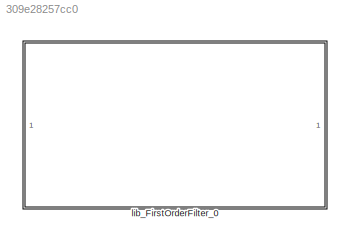
MODEL slx_309e28257cc0
KIND library
CONFIG AbsTol = auto
CONFIG EnableMultiTasking = off
CONFIG FixedStep = auto
CONFIG MaxStep = auto
CONFIG MinStep = auto
CONFIG RelTol = 1e-3
CONFIG SampleTimeConstraint = Unconstrained
CONFIG SolverName = VariableStepAuto
CONFIG StartTime = 0.0
CONFIG StopTime = 10.0
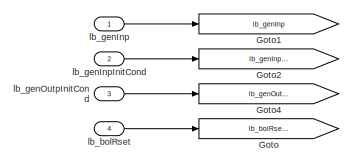
[diagram: lib_FirstOrderFilter_0 - part 1/4, top left region]
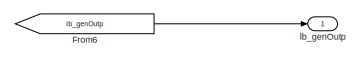
[diagram: lib_FirstOrderFilter_0 - part 2/4, top right region]
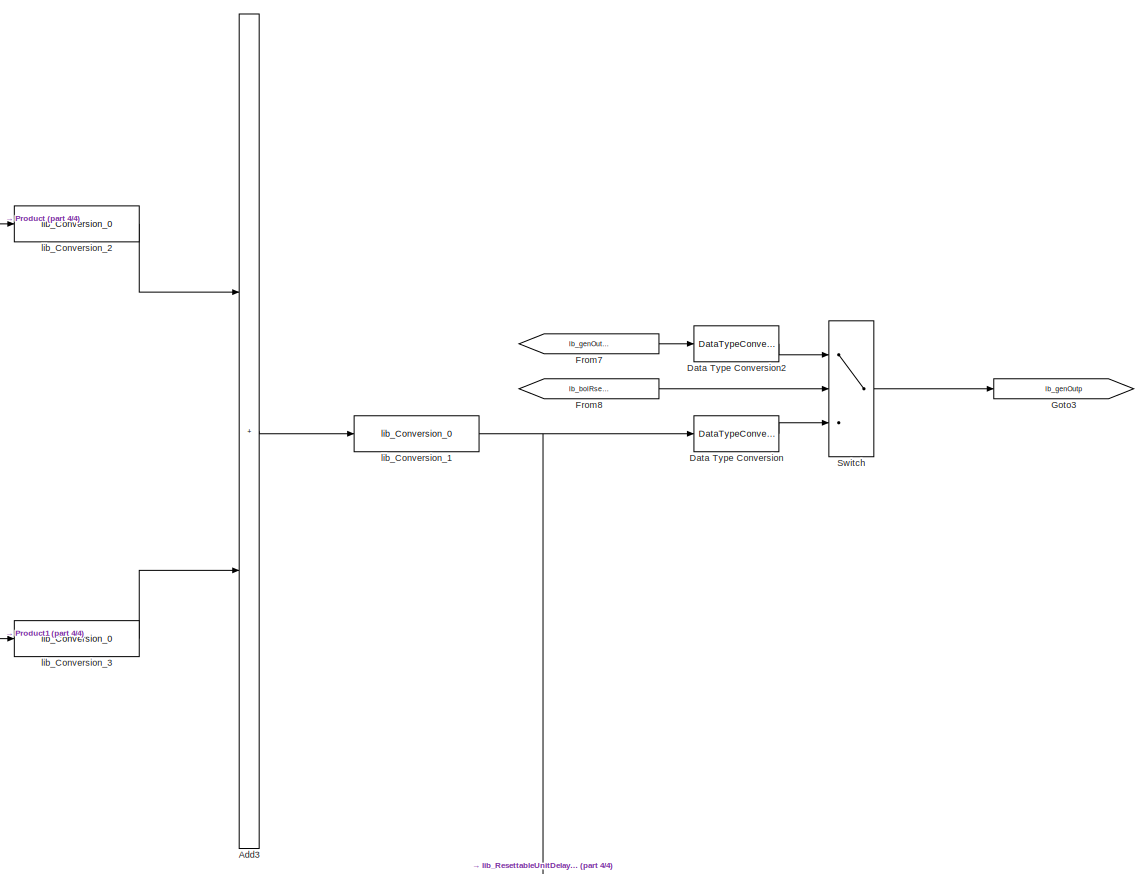
[diagram: lib_FirstOrderFilter_0 - part 3/4, middle right region]
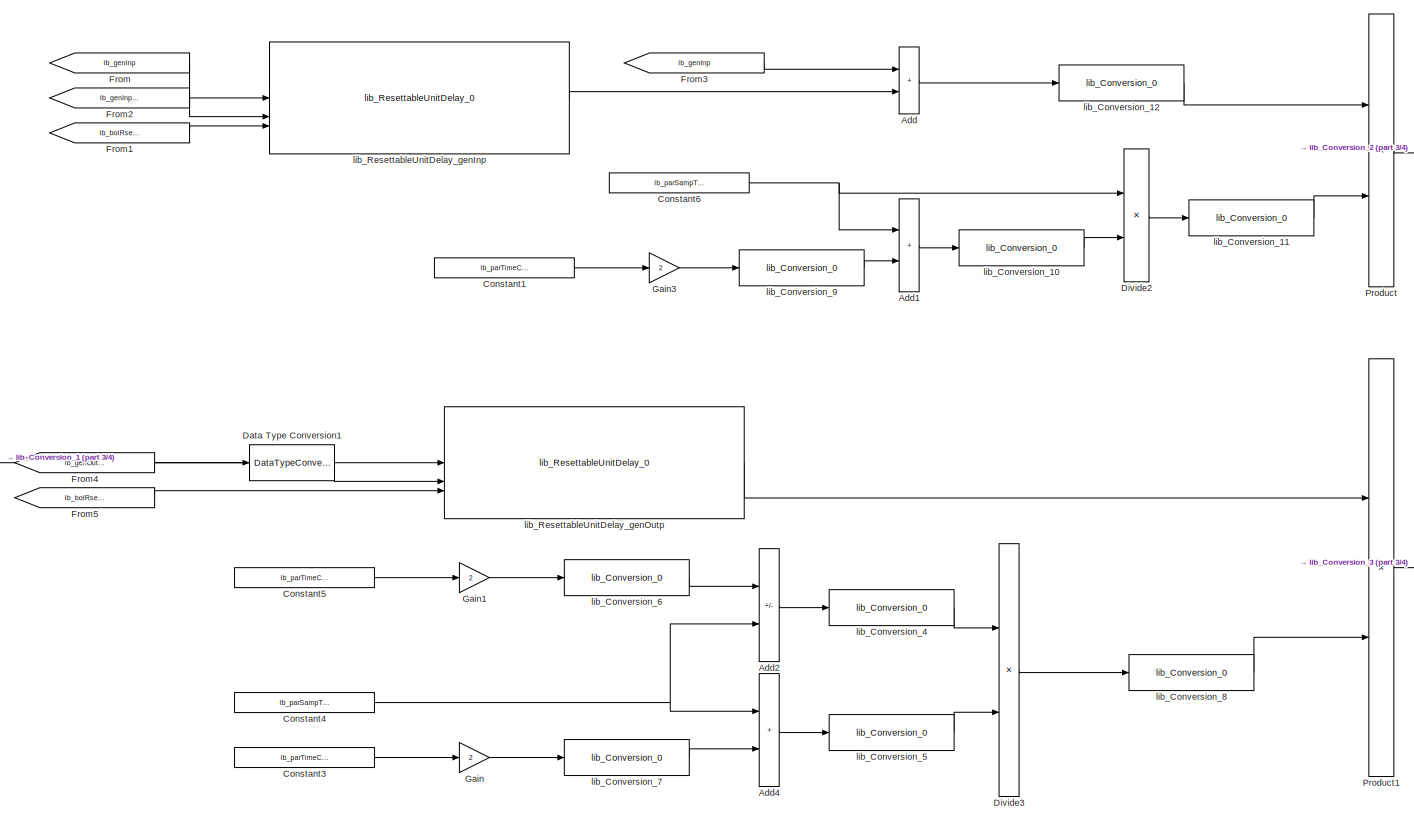
[diagram: lib_FirstOrderFilter_0 - part 4/4, central region]
BLOCK [SubSystem] lib_FirstOrderFilter_0
BLOCK [Sum] lib_FirstOrderFilter_0/Add
  IconShape = rectangular
  OutDataTypeStr = Inherit: Inherit via back propagation
BLOCK [Sum] lib_FirstOrderFilter_0/Add1
  IconShape = rectangular
  OutDataTypeStr = Inherit: Inherit via back propagation
BLOCK [Sum] lib_FirstOrderFilter_0/Add2
  IconShape = rectangular
  Inputs = +-
  OutDataTypeStr = Inherit: Inherit via back propagation
BLOCK [Sum] lib_FirstOrderFilter_0/Add3
  IconShape = rectangular
  OutDataTypeStr = Inherit: Inherit via back propagation
BLOCK [Sum] lib_FirstOrderFilter_0/Add4
  IconShape = rectangular
  OutDataTypeStr = Inherit: Inherit via back propagation
BLOCK [Constant] lib_FirstOrderFilter_0/Constant1
  Value = lb_parTimeCnst
BLOCK [Constant] lib_FirstOrderFilter_0/Constant3
  Value = lb_parTimeCnst
BLOCK [Constant] lib_FirstOrderFilter_0/Constant4
  Value = lb_parSampTime
BLOCK [Constant] lib_FirstOrderFilter_0/Constant5
  Value = lb_parTimeCnst
BLOCK [Constant] lib_FirstOrderFilter_0/Constant6
  Value = lb_parSampTime
BLOCK [DataTypeConversion] lib_FirstOrderFilter_0/Data Type Conversion
  OutDataTypeStr = lb_parOutpDataType
  RndMeth = Floor
  SaturateOnIntegerOverflow = off
BLOCK [DataTypeConversion] lib_FirstOrderFilter_0/Data Type Conversion1
  OutDataTypeStr = lb_parAccmDataType
  RndMeth = Floor
  SaturateOnIntegerOverflow = off
BLOCK [DataTypeConversion] lib_FirstOrderFilter_0/Data Type Conversion2
  OutDataTypeStr = lb_parOutpDataType
  RndMeth = Floor
  SaturateOnIntegerOverflow = off
BLOCK [Product] lib_FirstOrderFilter_0/Divide2
  Inputs = */
  OutDataTypeStr = Inherit: Inherit via back propagation
BLOCK [Product] lib_FirstOrderFilter_0/Divide3
  Inputs = */
  OutDataTypeStr = Inherit: Inherit via back propagation
BLOCK [From] lib_FirstOrderFilter_0/From
  GotoTag = lb_genInp
BLOCK [From] lib_FirstOrderFilter_0/From1
  GotoTag = lb_bolRsetCond
BLOCK [From] lib_FirstOrderFilter_0/From2
  GotoTag = lb_genInpInitCond
BLOCK [From] lib_FirstOrderFilter_0/From3
  GotoTag = lb_genInp
BLOCK [From] lib_FirstOrderFilter_0/From4
  GotoTag = lb_genOutpInitCond
BLOCK [From] lib_FirstOrderFilter_0/From5
  GotoTag = lb_bolRsetCond
BLOCK [From] lib_FirstOrderFilter_0/From6
  GotoTag = lb_genOutp
BLOCK [From] lib_FirstOrderFilter_0/From7
  GotoTag = lb_genOutpInitCond
BLOCK [From] lib_FirstOrderFilter_0/From8
  GotoTag = lb_bolRsetCond
BLOCK [Gain] lib_FirstOrderFilter_0/Gain
  Gain = 2
  OutDataTypeStr = Inherit: Inherit via back propagation
BLOCK [Gain] lib_FirstOrderFilter_0/Gain1
  Gain = 2
  OutDataTypeStr = Inherit: Inherit via back propagation
BLOCK [Gain] lib_FirstOrderFilter_0/Gain3
  Gain = 2
  OutDataTypeStr = Inherit: Inherit via back propagation
BLOCK [Goto] lib_FirstOrderFilter_0/Goto
  GotoTag = lb_bolRsetCond
BLOCK [Goto] lib_FirstOrderFilter_0/Goto1
  GotoTag = lb_genInp
BLOCK [Goto] lib_FirstOrderFilter_0/Goto2
  GotoTag = lb_genInpInitCond
BLOCK [Goto] lib_FirstOrderFilter_0/Goto3
  GotoTag = lb_genOutp
BLOCK [Goto] lib_FirstOrderFilter_0/Goto4
  GotoTag = lb_genOutpInitCond
BLOCK [Product] lib_FirstOrderFilter_0/Product
  OutDataTypeStr = Inherit: Inherit via back propagation
BLOCK [Product] lib_FirstOrderFilter_0/Product1
  OutDataTypeStr = Inherit: Inherit via back propagation
BLOCK [Switch] lib_FirstOrderFilter_0/Switch
  Criteria = u2 ~= 0
  InputSameDT = off
  SaturateOnIntegerOverflow = off
BLOCK [Inport] lib_FirstOrderFilter_0/lb_bolRset
  Port = 4
BLOCK [Inport] lib_FirstOrderFilter_0/lb_genInp
BLOCK [Inport] lib_FirstOrderFilter_0/lb_genInpInitCond
  Port = 2
BLOCK [Outport] lib_FirstOrderFilter_0/lb_genOutp
BLOCK [Inport] lib_FirstOrderFilter_0/lb_genOutpInitCond
  Port = 3
BLOCK [Reference] lib_FirstOrderFilter_0/lib_Conversion_1  REF=lib_conversion/lib_Conversion_0  (lib defined in slx_7f5c0202220d)
  SourceBlock = lib_conversion/lib_Conversion_0
BLOCK [Reference] lib_FirstOrderFilter_0/lib_Conversion_10  REF=lib_conversion/lib_Conversion_0  (lib defined in slx_7f5c0202220d)
  SourceBlock = lib_conversion/lib_Conversion_0
BLOCK [Reference] lib_FirstOrderFilter_0/lib_Conversion_11  REF=lib_conversion/lib_Conversion_0  (lib defined in slx_7f5c0202220d)
  SourceBlock = lib_conversion/lib_Conversion_0
BLOCK [Reference] lib_FirstOrderFilter_0/lib_Conversion_12  REF=lib_conversion/lib_Conversion_0  (lib defined in slx_7f5c0202220d)
  SourceBlock = lib_conversion/lib_Conversion_0
BLOCK [Reference] lib_FirstOrderFilter_0/lib_Conversion_2  REF=lib_conversion/lib_Conversion_0  (lib defined in slx_7f5c0202220d)
  SourceBlock = lib_conversion/lib_Conversion_0
BLOCK [Reference] lib_FirstOrderFilter_0/lib_Conversion_3  REF=lib_conversion/lib_Conversion_0  (lib defined in slx_7f5c0202220d)
  SourceBlock = lib_conversion/lib_Conversion_0
BLOCK [Reference] lib_FirstOrderFilter_0/lib_Conversion_4  REF=lib_conversion/lib_Conversion_0  (lib defined in slx_7f5c0202220d)
  SourceBlock = lib_conversion/lib_Conversion_0
BLOCK [Reference] lib_FirstOrderFilter_0/lib_Conversion_5  REF=lib_conversion/lib_Conversion_0  (lib defined in slx_7f5c0202220d)
  SourceBlock = lib_conversion/lib_Conversion_0
BLOCK [Reference] lib_FirstOrderFilter_0/lib_Conversion_6  REF=lib_conversion/lib_Conversion_0  (lib defined in slx_7f5c0202220d)
  SourceBlock = lib_conversion/lib_Conversion_0
BLOCK [Reference] lib_FirstOrderFilter_0/lib_Conversion_7  REF=lib_conversion/lib_Conversion_0  (lib defined in slx_7f5c0202220d)
  SourceBlock = lib_conversion/lib_Conversion_0
BLOCK [Reference] lib_FirstOrderFilter_0/lib_Conversion_8  REF=lib_conversion/lib_Conversion_0  (lib defined in slx_7f5c0202220d)
  SourceBlock = lib_conversion/lib_Conversion_0
BLOCK [Reference] lib_FirstOrderFilter_0/lib_Conversion_9  REF=lib_conversion/lib_Conversion_0  (lib defined in slx_7f5c0202220d)
  SourceBlock = lib_conversion/lib_Conversion_0
BLOCK [Reference] lib_FirstOrderFilter_0/lib_ResettableUnitDelay_genInp  REF=lib_resettable_unit_delay/lib_ResettableUnitDelay_0  (lib defined in slx_07610dccfeb3)
  LibrarySourceBlock = vhit_control_library/lib_ResettableUnitDelay_0
  SourceBlock = lib_resettable_unit_delay/lib_ResettableUnitDelay_0
BLOCK [Reference] lib_FirstOrderFilter_0/lib_ResettableUnitDelay_genOutp  REF=lib_resettable_unit_delay/lib_ResettableUnitDelay_0  (lib defined in slx_07610dccfeb3)
  LibrarySourceBlock = vhit_control_library/lib_ResettableUnitDelay_0
  SourceBlock = lib_resettable_unit_delay/lib_ResettableUnitDelay_0
LINE lib_FirstOrderFilter_0/Add1:1 -> lib_FirstOrderFilter_0/lib_Conversion_10:1
LINE lib_FirstOrderFilter_0/Add2:1 -> lib_FirstOrderFilter_0/lib_Conversion_4:1
LINE lib_FirstOrderFilter_0/Add3:1 -> lib_FirstOrderFilter_0/lib_Conversion_1:1
LINE lib_FirstOrderFilter_0/Add4:1 -> lib_FirstOrderFilter_0/lib_Conversion_5:1
LINE lib_FirstOrderFilter_0/Add:1 -> lib_FirstOrderFilter_0/lib_Conversion_12:1
LINE lib_FirstOrderFilter_0/Constant1:1 -> lib_FirstOrderFilter_0/Gain3:1
LINE lib_FirstOrderFilter_0/Constant3:1 -> lib_FirstOrderFilter_0/Gain:1
NET lib_FirstOrderFilter_0/Constant4:1 -> lib_FirstOrderFilter_0/Add2:2, lib_FirstOrderFilter_0/Add4:1
LINE lib_FirstOrderFilter_0/Constant5:1 -> lib_FirstOrderFilter_0/Gain1:1
NET lib_FirstOrderFilter_0/Constant6:1 -> lib_FirstOrderFilter_0/Add1:1, lib_FirstOrderFilter_0/Divide2:1
LINE lib_FirstOrderFilter_0/Data Type Conversion1:1 -> lib_FirstOrderFilter_0/lib_ResettableUnitDelay_genOutp:2
LINE lib_FirstOrderFilter_0/Data Type Conversion2:1 -> lib_FirstOrderFilter_0/Switch:1
LINE lib_FirstOrderFilter_0/Data Type Conversion:1 -> lib_FirstOrderFilter_0/Switch:3
LINE lib_FirstOrderFilter_0/Divide2:1 -> lib_FirstOrderFilter_0/lib_Conversion_11:1
LINE lib_FirstOrderFilter_0/Divide3:1 -> lib_FirstOrderFilter_0/lib_Conversion_8:1
LINE lib_FirstOrderFilter_0/From1:1 -> lib_FirstOrderFilter_0/lib_ResettableUnitDelay_genInp:3
LINE lib_FirstOrderFilter_0/From2:1 -> lib_FirstOrderFilter_0/lib_ResettableUnitDelay_genInp:2
LINE lib_FirstOrderFilter_0/From3:1 -> lib_FirstOrderFilter_0/Add:1
LINE lib_FirstOrderFilter_0/From4:1 -> lib_FirstOrderFilter_0/Data Type Conversion1:1
LINE lib_FirstOrderFilter_0/From5:1 -> lib_FirstOrderFilter_0/lib_ResettableUnitDelay_genOutp:3
LINE lib_FirstOrderFilter_0/From6:1 -> lib_FirstOrderFilter_0/lb_genOutp:1
LINE lib_FirstOrderFilter_0/From7:1 -> lib_FirstOrderFilter_0/Data Type Conversion2:1
LINE lib_FirstOrderFilter_0/From8:1 -> lib_FirstOrderFilter_0/Switch:2
LINE lib_FirstOrderFilter_0/From:1 -> lib_FirstOrderFilter_0/lib_ResettableUnitDelay_genInp:1
LINE lib_FirstOrderFilter_0/Gain1:1 -> lib_FirstOrderFilter_0/lib_Conversion_6:1
LINE lib_FirstOrderFilter_0/Gain3:1 -> lib_FirstOrderFilter_0/lib_Conversion_9:1
LINE lib_FirstOrderFilter_0/Gain:1 -> lib_FirstOrderFilter_0/lib_Conversion_7:1
LINE lib_FirstOrderFilter_0/Product1:1 -> lib_FirstOrderFilter_0/lib_Conversion_3:1
LINE lib_FirstOrderFilter_0/Product:1 -> lib_FirstOrderFilter_0/lib_Conversion_2:1
LINE lib_FirstOrderFilter_0/Switch:1 -> lib_FirstOrderFilter_0/Goto3:1
LINE lib_FirstOrderFilter_0/lb_bolRset:1 -> lib_FirstOrderFilter_0/Goto:1
LINE lib_FirstOrderFilter_0/lb_genInp:1 -> lib_FirstOrderFilter_0/Goto1:1
LINE lib_FirstOrderFilter_0/lb_genInpInitCond:1 -> lib_FirstOrderFilter_0/Goto2:1
LINE lib_FirstOrderFilter_0/lb_genOutpInitCond:1 -> lib_FirstOrderFilter_0/Goto4:1
LINE lib_FirstOrderFilter_0/lib_Conversion_10:1 -> lib_FirstOrderFilter_0/Divide2:2
LINE lib_FirstOrderFilter_0/lib_Conversion_11:1 -> lib_FirstOrderFilter_0/Product:2
LINE lib_FirstOrderFilter_0/lib_Conversion_12:1 -> lib_FirstOrderFilter_0/Product:1
NET lib_FirstOrderFilter_0/lib_Conversion_1:1 -> lib_FirstOrderFilter_0/Data Type Conversion:1, lib_FirstOrderFilter_0/lib_ResettableUnitDelay_genOutp:1
LINE lib_FirstOrderFilter_0/lib_Conversion_2:1 -> lib_FirstOrderFilter_0/Add3:1
LINE lib_FirstOrderFilter_0/lib_Conversion_3:1 -> lib_FirstOrderFilter_0/Add3:2
LINE lib_FirstOrderFilter_0/lib_Conversion_4:1 -> lib_FirstOrderFilter_0/Divide3:1
LINE lib_FirstOrderFilter_0/lib_Conversion_5:1 -> lib_FirstOrderFilter_0/Divide3:2
LINE lib_FirstOrderFilter_0/lib_Conversion_6:1 -> lib_FirstOrderFilter_0/Add2:1
LINE lib_FirstOrderFilter_0/lib_Conversion_7:1 -> lib_FirstOrderFilter_0/Add4:2
LINE lib_FirstOrderFilter_0/lib_Conversion_8:1 -> lib_FirstOrderFilter_0/Product1:2
LINE lib_FirstOrderFilter_0/lib_Conversion_9:1 -> lib_FirstOrderFilter_0/Add1:2
LINE lib_FirstOrderFilter_0/lib_ResettableUnitDelay_genInp:1 -> lib_FirstOrderFilter_0/Add:2
LINE lib_FirstOrderFilter_0/lib_ResettableUnitDelay_genOutp:1 -> lib_FirstOrderFilter_0/Product1:1
note: NET lines group one-source signal fan-out (src -> all destinations, sorted); 1:1 wires keep LINE
